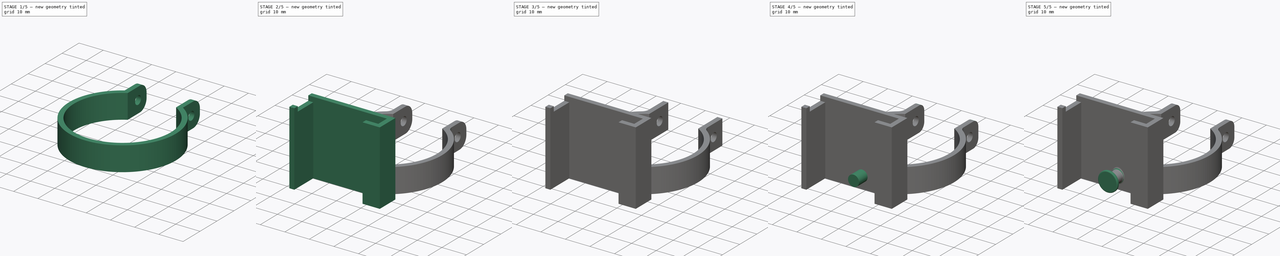
[diagram: build sequence overview — one tinted view per stage of 5, left to right]
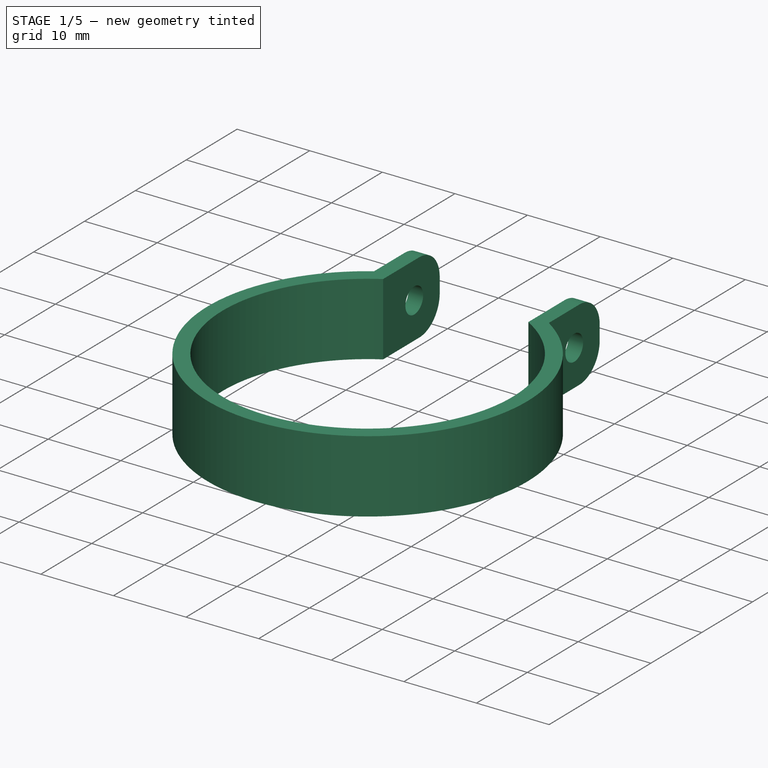
[diagram: stage 1 of 5 — iso view after this stage's code; geometry added in this stage tinted green]
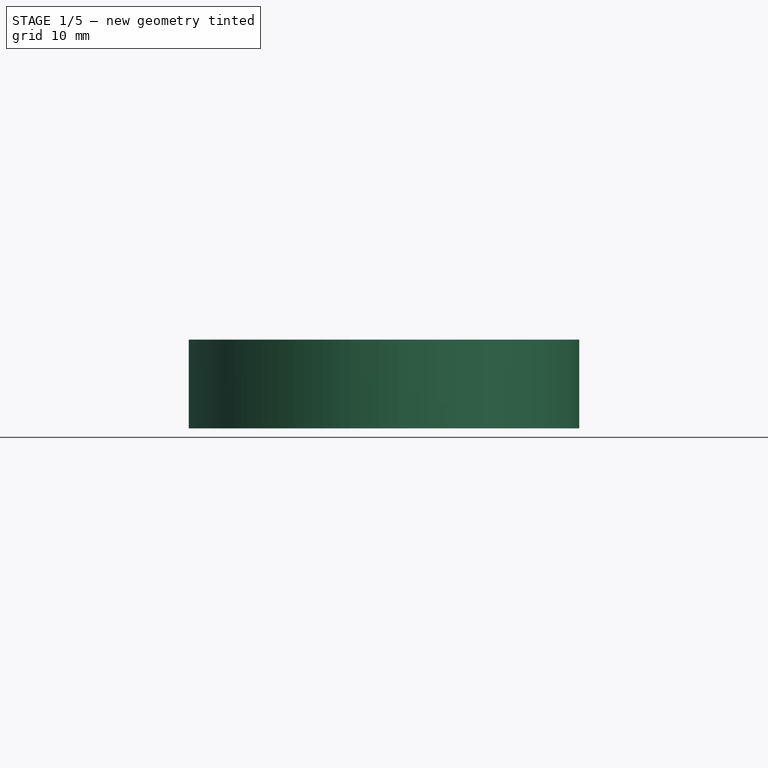
[diagram: stage 1 of 5 — front view after this stage's code; geometry added in this stage tinted green]
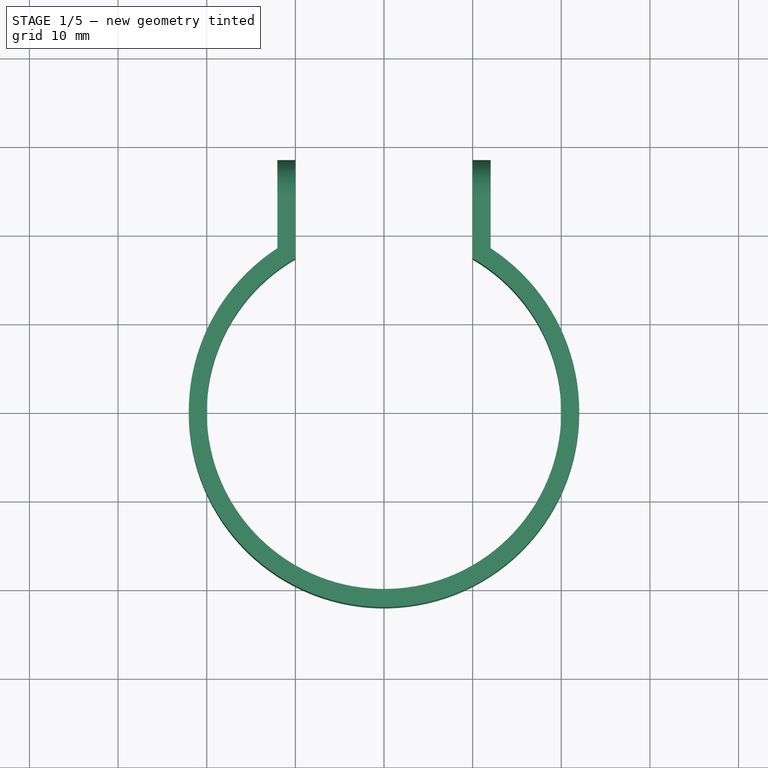
[diagram: stage 1 of 5 — top view after this stage's code; geometry added in this stage tinted green]
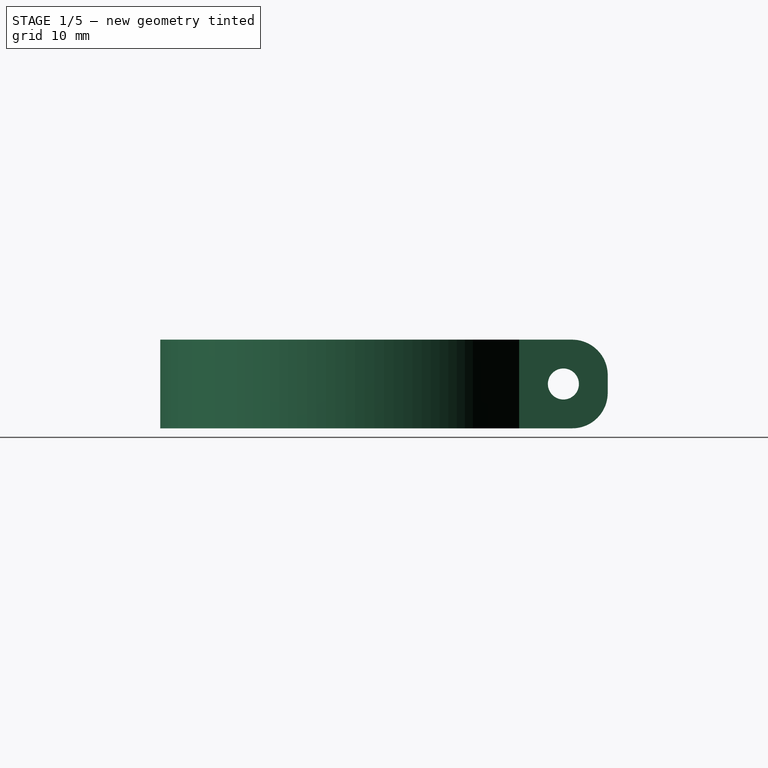
[diagram: stage 1 of 5 — right view after this stage's code; geometry added in this stage tinted green]
FCSTD DOCUMENT  (FreeCAD 0.17R13519 (Git))
Label: MMHook
License: All rights reserved
LicenseURL: http://en.wikipedia.org/wiki/All_rights_reserved
objects: Sketcher::SketchObject×8, PartDesign::Fillet×7, PartDesign::Pad×5, PartDesign::Pocket×3, PartDesign::Body×2, App::Part×2, Spreadsheet::Sheet×1
note: 33 computed .brp shape members not serialized (recipe doc carries the construction recipe); baked Part::Feature solids carry a one-line shape summary decoded from their .brp

FEATURE [PartDesign::Body] Body  label="MMHookBody"
  Group = -> [Sketch,Pad,Sketch001,Pocket,Fillet003,Fillet002,Sketch002,Pad001,Sketch003,Pad002,Fillet001,Fillet]
  Origin = -> Origin001
  Tip = -> Fillet
FEATURE [App::Part] Part  label="MMHook"
  Group = -> [Body]
  License = CC BY 3.0
  LicenseURL = http://creativecommons.org/licenses/by/3.0/
  Origin = -> Origin
FEATURE [Sketcher::SketchObject] Sketch004
  MapMode = 5
  Placement = pos=(0,0,0) rot=(0.57735,-0.57735,-0.57735;2.0944rad)
  expr: Constraints[2] = Spreadsheet.RingHeight / 2
  expr: Constraints[1] = Sketch005.Constraints.TabOffset + Spreadsheet.TabLength / 2
  sketch-geometry (1):
    g0: Circle CenterX=-23.4554 CenterY=5 CenterZ=0 NormalX=0 NormalY=0 NormalZ=1 AngleXU=0 Radius=1.75
  constraints (3):
    c: Radius(g0) = 1.75
    c: DistanceX(g0,g-1) = 23.4554
    c: DistanceY(g-1,g0) = 5
FEATURE [Sketcher::SketchObject] Sketch005  label="SqHookBase"
  MapMode = 5
  Support = -> [XY_Plane003]
  expr: Constraints[23] = Spreadsheet.TabLength
  expr: Constraints[14] = Spreadsheet.Thickness
  expr: Constraints[5] = Spreadsheet.Radius + Spreadsheet.Thickness
  expr: Constraints[3] = Spreadsheet.Radius
  expr: Constraints[1] = Spreadsheet.Radius
  sketch-geometry (10):
    g0: ArcOfCircle CenterX=0 CenterY=0 CenterZ=0 NormalX=0 NormalY=0 NormalZ=1 AngleXU=0 Radius=20 StartAngle=2.0944 EndAngle=7.33038
    g1: ArcOfCircle CenterX=0 CenterY=0 CenterZ=0 NormalX=0 NormalY=0 NormalZ=1 AngleXU=0 Radius=22.03 StartAngle=2.14847 EndAngle=7.27631
    g2: LineSegment StartX=-10 StartY=17.3205 StartZ=0 EndX=-10 EndY=28.4554 EndZ=0
    g3: LineSegment StartX=-10 StartY=28.4554 StartZ=0 EndX=-12.03 EndY=28.4554 EndZ=0
    g4: LineSegment StartX=-12.03 StartY=28.4554 StartZ=0 EndX=-12.03 EndY=18.4554 EndZ=0
    g5: LineSegment StartX=10 StartY=17.3205 StartZ=0 EndX=10 EndY=28.4554 EndZ=0
    g6: LineSegment StartX=10 StartY=28.4554 StartZ=0 EndX=12.03 EndY=28.4554 EndZ=0
    g7: LineSegment StartX=12.03 StartY=28.4554 StartZ=0 EndX=12.03 EndY=18.4554 EndZ=0
    g8: LineSegment [constr] StartX=-12.03 StartY=18.4554 StartZ=0 EndX=0 EndY=18.4554 EndZ=0
    g9: LineSegment [constr] StartX=0 StartY=18.4554 StartZ=0 EndX=0 EndY=0 EndZ=0
  constraints (31):
    c: Coincident(g0,g-1)
    c: Radius(g0) = 20
    c: Symmetric(g0,g0,g-2)
    c: DistanceX(g0,g0) = 20
    c: Coincident(g1,g-1)
    c: Radius(g1) = 22.03
    c: Symmetric(g1,g1,g-2)
    c: Coincident(g2,g0)
    c: Vertical(g2)
    c: Coincident(g3,g2)
    c: Horizontal(g3)
    c: Coincident(g4,g3)
    c: Coincident(g4,g1)
    c: Vertical(g4)
    c: DistanceX(g3,g3) = 2.03
    c: Coincident(g5,g0)
    c: Vertical(g5)
    c: Coincident(g6,g5)
    c: Horizontal(g6)
    c: Coincident(g7,g6)
    c: Coincident(g7,g1)
    c: Vertical(g7)
    c: Equal(g3,g6)
    c: DistanceY(g4,g4) = 10
    c: Equal(g4,g7)
    c: Coincident(g8,g1)
    c: PointOnObject(g8,g-2)
    c: Horizontal(g8)
    c: Coincident(g9,g8)
    c: Coincident(g9,g-1)
    c: DistanceY(g9,g9) = 18.4554  'TabOffset'
FEATURE [Sketcher::SketchObject] Sketch006
  MapMode = 5
  Support = -> [XY_Plane003]
  expr: Constraints[33] = 5mm + 2 * Spreadsheet.Thickness
  expr: Constraints[28] = Spreadsheet.Thickness
  expr: Constraints[34] = 11mm + Spreadsheet.Thickness
  expr: Constraints[29] = Spreadsheet.Radius + 0.001mm
  sketch-geometry (11):
    g0: LineSegment StartX=-17.03 StartY=-20.001 StartZ=0 EndX=17.03 EndY=-20.001 EndZ=0
    g1: LineSegment StartX=17.03 StartY=-20.001 StartZ=0 EndX=17.03 EndY=-29.061 EndZ=0
    g2: LineSegment StartX=17.03 StartY=-29.061 StartZ=0 EndX=10 EndY=-29.061 EndZ=0
    g3: LineSegment StartX=10 StartY=-29.061 StartZ=0 EndX=10 EndY=-27.031 EndZ=0
    g4: LineSegment StartX=10 StartY=-27.031 StartZ=0 EndX=15 EndY=-27.031 EndZ=0
    g5: LineSegment StartX=15 StartY=-27.031 StartZ=0 EndX=15 EndY=-22.031 EndZ=0
    g6: LineSegment StartX=15 StartY=-22.031 StartZ=0 EndX=-15 EndY=-22.031 EndZ=0
    g7: LineSegment StartX=-15 StartY=-22.031 StartZ=0 EndX=-15 EndY=-33.031 EndZ=0
    g8: LineSegment StartX=-15 StartY=-33.031 StartZ=0 EndX=-17.03 EndY=-33.031 EndZ=0
    g9: LineSegment StartX=-17.03 StartY=-33.031 StartZ=0 EndX=-17.03 EndY=-20.001 EndZ=0
    g10: LineSegment [constr] StartX=15 StartY=-27.031 StartZ=0 EndX=17.03 EndY=-27.031 EndZ=0
  constraints (35):
    c: Horizontal(g0)
    c: Coincident(g0,g1)
    c: Vertical(g1)
    c: Coincident(g1,g2)
    c: Horizontal(g2)
    c: Coincident(g2,g3)
    c: Coincident(g3,g4)
    c: Horizontal(g4)
    c: Coincident(g4,g5)
    c: Vertical(g5)
    c: Coincident(g5,g6)
    c: Horizontal(g6)
    c: Coincident(g6,g7)
    c: Vertical(g7)
    c: Coincident(g7,g8)
    c: Coincident(g8,g9)
    c: Coincident(g9,g0)
    c: Vertical(g9)
    c: Horizontal(g8)
    c: Equal(g8,g3)
    c: Symmetric(g0,g0,g-2)
    c: Symmetric(g5,g6,g-2)
    c: Vertical(g3)
    c: Coincident(g10,g4)
    c: PointOnObject(g10,g1)
    c: Horizontal(g10)
    c: Equal(g3,g10)
    c: DistanceX(g6,g6) = 30
    c: DistanceX(g8,g8) = 2.03
    c: DistanceY(g0,g-1) = 20.001
    c: DistanceY(g7,g7) = 11
    c: DistanceY(g3,g5) = 5
    c: DistanceX(g4,g4) = 5
    c: DistanceY(g1,g1) = 9.06
    c: DistanceY(g9,g9) = 13.03
FEATURE [PartDesign::Pad] Pad003
  Length = 10
  Length2 = 100
  Profile = -> Sketch005
  Type = 0
  expr: Length = Spreadsheet.RingHeight
FEATURE [PartDesign::Pocket] Pocket001
  BaseFeature = -> Pad003
  Length = 0
  Length2 = 100
  Midplane = true
  Profile = -> Sketch004
  Type = 1
FEATURE [PartDesign::Fillet] Fillet004
  Base = -> Pocket001 [Edge16,Edge20,Edge14,Edge10]
  BaseFeature = -> Pocket001
  Radius = 4
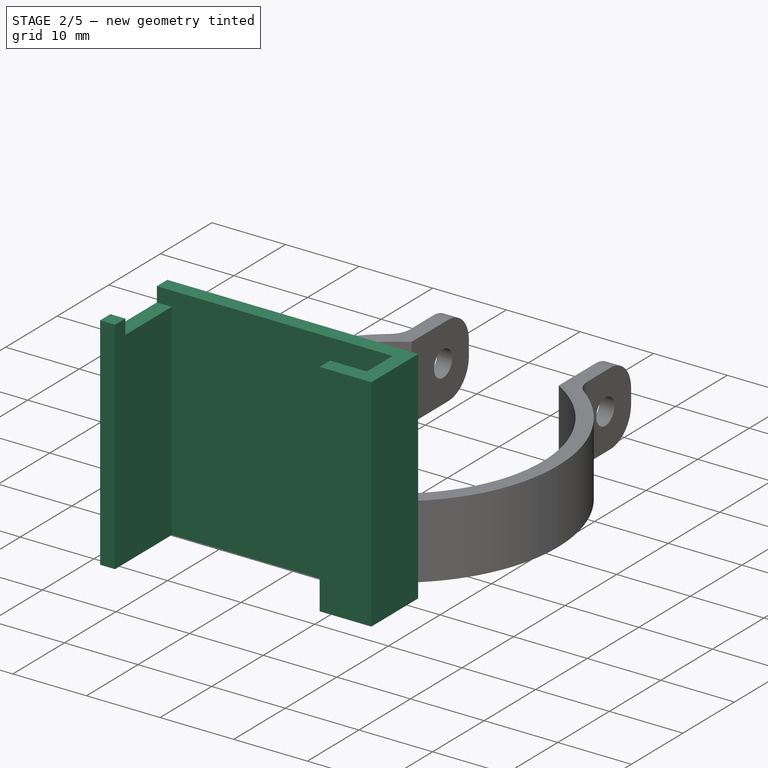
[diagram: stage 2 of 5 — iso view after this stage's code; geometry added in this stage tinted green]
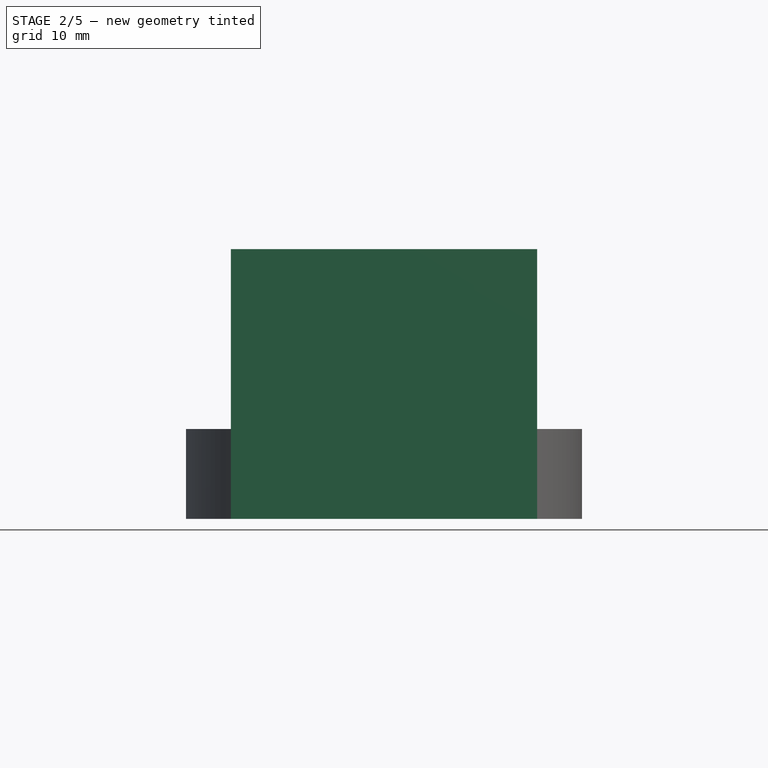
[diagram: stage 2 of 5 — front view after this stage's code; geometry added in this stage tinted green]
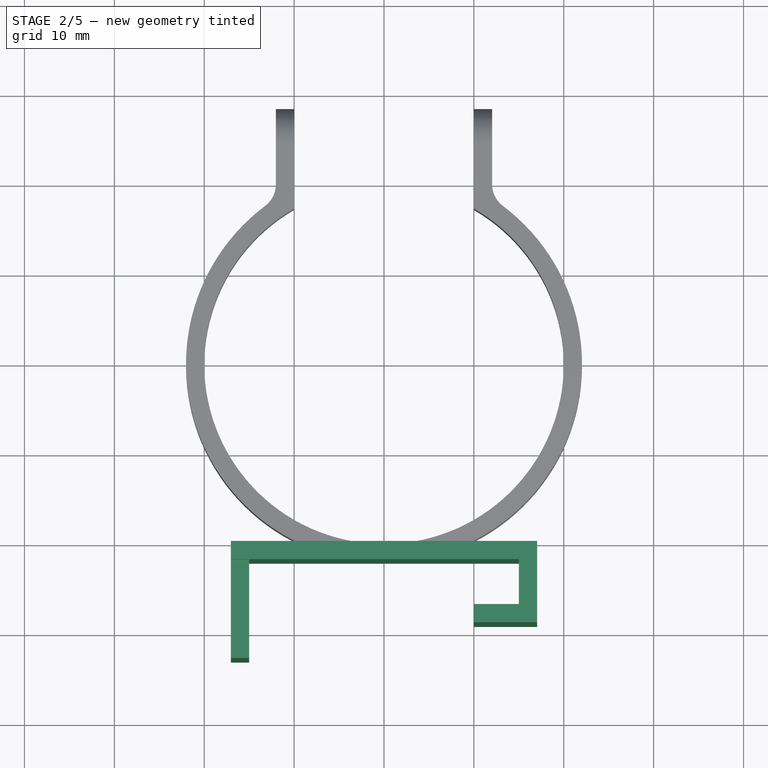
[diagram: stage 2 of 5 — top view after this stage's code; geometry added in this stage tinted green]
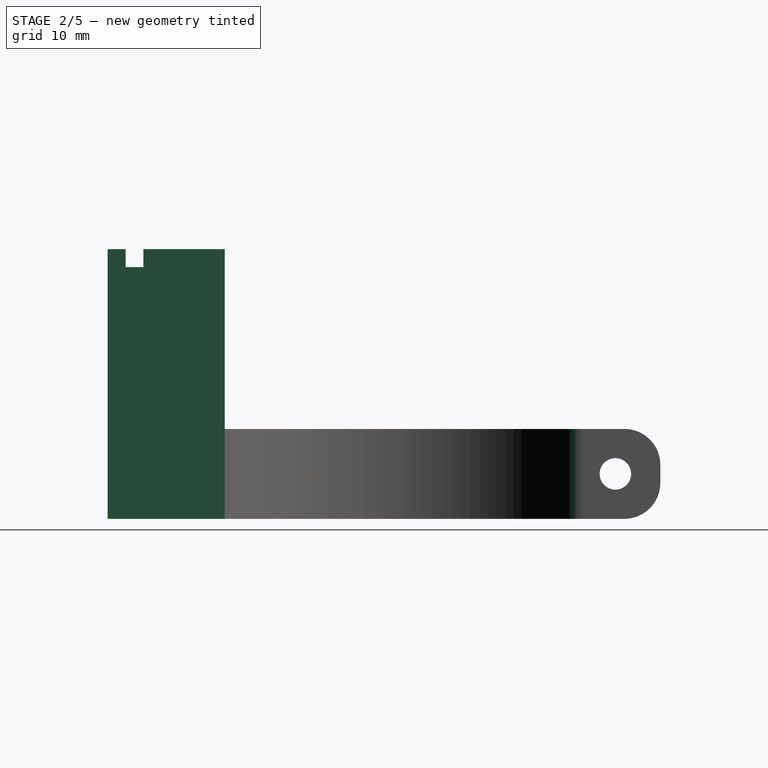
[diagram: stage 2 of 5 — right view after this stage's code; geometry added in this stage tinted green]
FEATURE [Spreadsheet::Sheet] Spreadsheet
  cells = B2=Radius; C2(Radius)==20mm; B3=Thickness; C3(Thickness)==2.0299999999999998mm; B4=TabLength; C4(TabLength)==10mm; B5=RingHeight; C5(RingHeight)==10mm
FEATURE [Sketcher::SketchObject] Sketch007
  AttachmentOffset = pos=(0,0,30) rot=(0,0,1;0rad)
  MapMode = 5
  Placement = pos=(0,0,30) rot=(0,0,1;0rad)
  Support = -> [XY_Plane003]
  expr: Constraints[12] = Spreadsheet.Radius + Spreadsheet.Thickness + 0.001mm
  expr: Constraints[5] = Spreadsheet.Thickness
  expr: AttachmentOffset.Base.z = Pad004.Length
  sketch-geometry (5):
    g0: LineSegment [constr] StartX=15 StartY=-22.031 StartZ=0 EndX=-15 EndY=-22.031 EndZ=0
    g1: LineSegment StartX=-15 StartY=-22.031 StartZ=0 EndX=-15 EndY=-31.031 EndZ=0
    g2: LineSegment StartX=-15 StartY=-31.031 StartZ=0 EndX=-17.03 EndY=-31.031 EndZ=0
    g3: LineSegment StartX=-17.03 StartY=-31.031 StartZ=0 EndX=-17.03 EndY=-22.031 EndZ=0
    g4: LineSegment StartX=-17.03 StartY=-22.031 StartZ=0 EndX=-15 EndY=-22.031 EndZ=0
  constraints (15):
    c: Coincident(g0,g1)
    c: Vertical(g1)
    c: Coincident(g1,g2)
    c: Horizontal(g2)
    c: DistanceX(g0,g0) = 30
    c: DistanceX(g2,g2) = 2.03
    c: DistanceY(g1,g1) = 9
    c: Coincident(g3,g2)
    c: Vertical(g3)
    c: Coincident(g4,g3)
    c: Coincident(g4,g0)
    c: Horizontal(g4)
    c: DistanceY(g3,g-1) = 22.031
    c: Horizontal(g0)
    c: Symmetric(g0,g0,g-2)
FEATURE [PartDesign::Fillet] Fillet006
  Base = -> Fillet004 [Edge30,Edge35]
  BaseFeature = -> Fillet004
  Radius = 3
FEATURE [PartDesign::Pad] Pad004
  BaseFeature = -> Fillet006
  Length = 30
  Length2 = 100
  Profile = -> Sketch006
  Type = 0
FEATURE [PartDesign::Pocket] Pocket002
  BaseFeature = -> Pad004
  Length = 2
  Length2 = 100
  Profile = -> Sketch007
  Type = 0
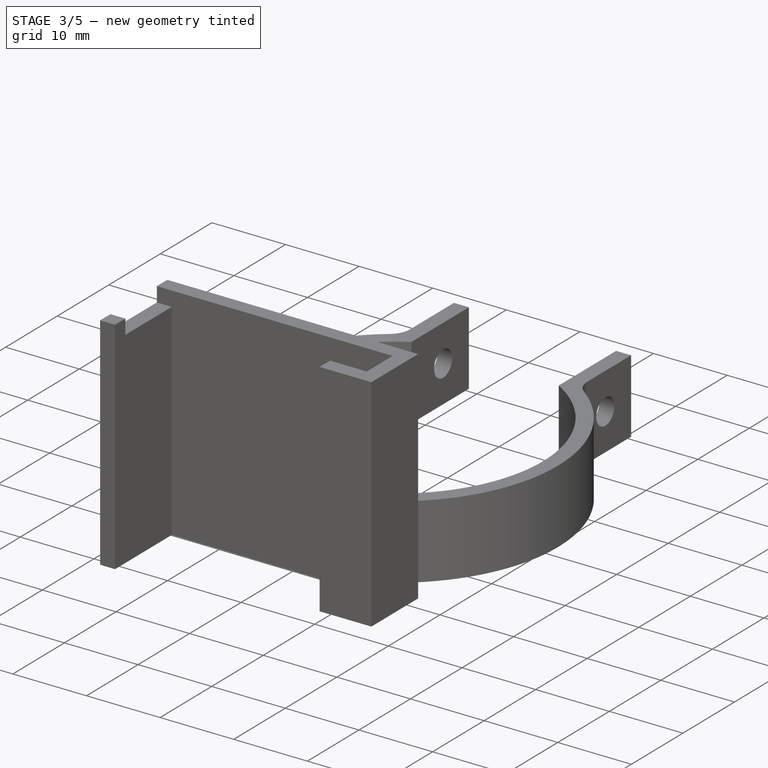
[diagram: stage 3 of 5 — iso view after this stage's code; geometry added in this stage tinted green]
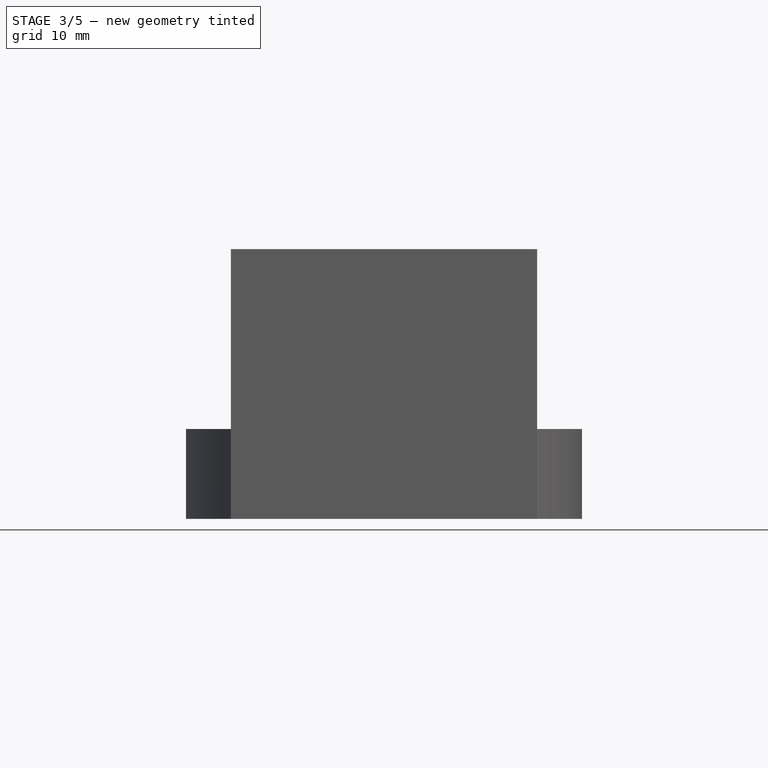
[diagram: stage 3 of 5 — front view after this stage's code; geometry added in this stage tinted green]
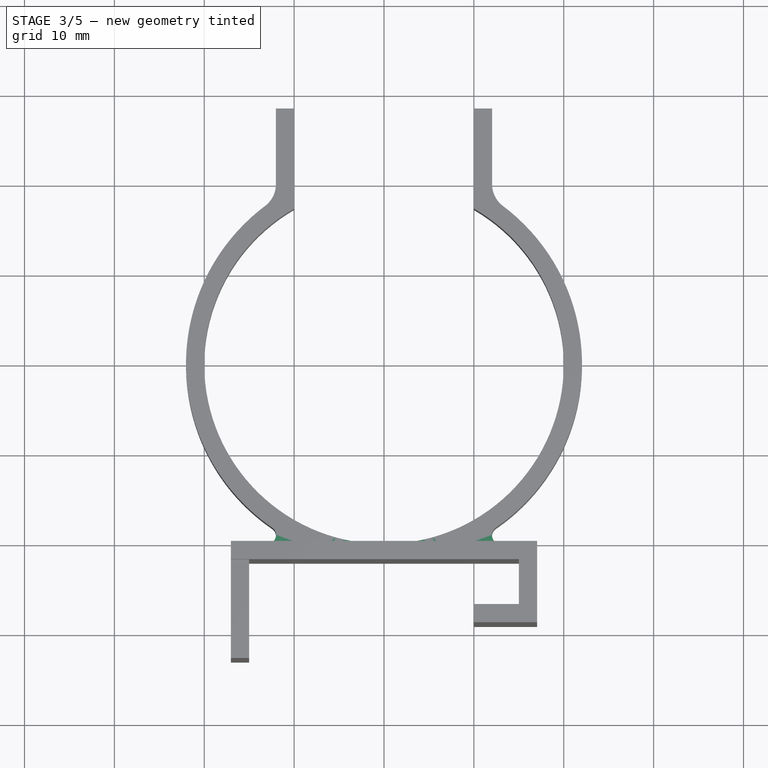
[diagram: stage 3 of 5 — top view after this stage's code; geometry added in this stage tinted green]
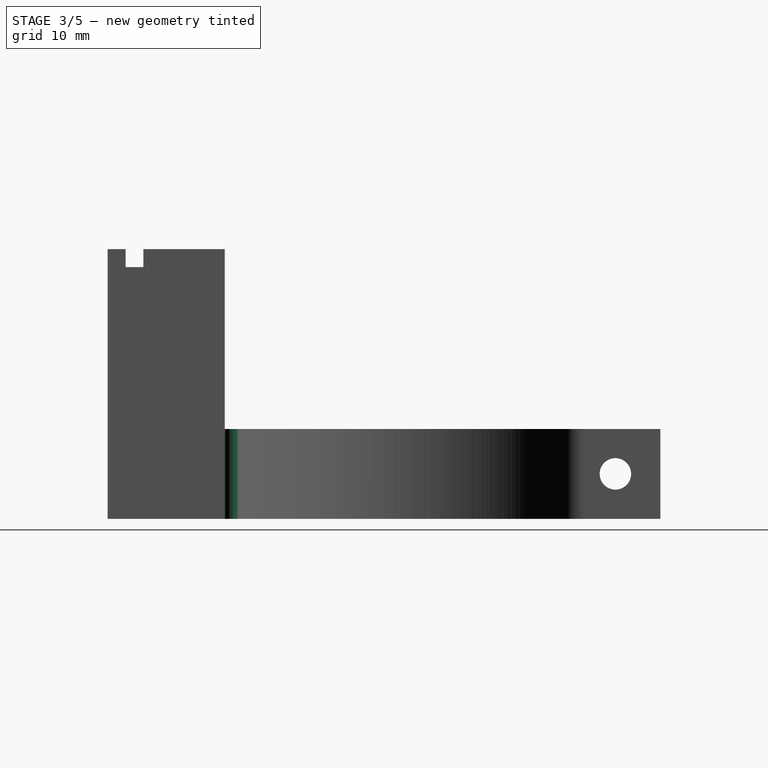
[diagram: stage 3 of 5 — right view after this stage's code; geometry added in this stage tinted green]
FEATURE [Sketcher::SketchObject] Sketch  label="MMHookBase"
  MapMode = 5
  Support = -> [XY_Plane001]
  expr: Constraints[3] = Spreadsheet.Radius
  expr: Constraints[1] = Spreadsheet.Radius
  expr: Constraints[5] = Spreadsheet.Radius + Spreadsheet.Thickness
  expr: Constraints[23] = Spreadsheet.TabLength
  expr: Constraints[14] = Spreadsheet.Thickness
  sketch-geometry (10):
    g0: ArcOfCircle CenterX=0 CenterY=0 CenterZ=0 NormalX=0 NormalY=0 NormalZ=1 AngleXU=0 Radius=20 StartAngle=2.0944 EndAngle=7.33038
    g1: ArcOfCircle CenterX=0 CenterY=0 CenterZ=0 NormalX=0 NormalY=0 NormalZ=1 AngleXU=0 Radius=22.03 StartAngle=2.14847 EndAngle=7.27631
    g2: LineSegment StartX=-10 StartY=17.3205 StartZ=0 EndX=-10 EndY=28.4554 EndZ=0
    g3: LineSegment StartX=-10 StartY=28.4554 StartZ=0 EndX=-12.03 EndY=28.4554 EndZ=0
    g4: LineSegment StartX=-12.03 StartY=28.4554 StartZ=0 EndX=-12.03 EndY=18.4554 EndZ=0
    g5: LineSegment StartX=10 StartY=17.3205 StartZ=0 EndX=10 EndY=28.4554 EndZ=0
    g6: LineSegment StartX=10 StartY=28.4554 StartZ=0 EndX=12.03 EndY=28.4554 EndZ=0
    g7: LineSegment StartX=12.03 StartY=28.4554 StartZ=0 EndX=12.03 EndY=18.4554 EndZ=0
    g8: LineSegment [constr] StartX=-12.03 StartY=18.4554 StartZ=0 EndX=0 EndY=18.4554 EndZ=0
    g9: LineSegment [constr] StartX=0 StartY=0 StartZ=0 EndX=0 EndY=18.4554 EndZ=0
  constraints (31):
    c: Coincident(g0,g-1)
    c: Radius(g0) = 20
    c: Symmetric(g0,g0,g-2)
    c: DistanceX(g0,g0) = 20
    c: Coincident(g1,g-1)
    c: Radius(g1) = 22.03
    c: Symmetric(g1,g1,g-2)
    c: Coincident(g2,g0)
    c: Vertical(g2)
    c: Coincident(g3,g2)
    c: Horizontal(g3)
    c: Coincident(g4,g3)
    c: Coincident(g4,g1)
    c: Vertical(g4)
    c: DistanceX(g3,g3) = 2.03
    c: Coincident(g5,g0)
    c: Vertical(g5)
    c: Coincident(g6,g5)
    c: Horizontal(g6)
    c: Coincident(g7,g6)
    c: Coincident(g7,g1)
    c: Vertical(g7)
    c: Equal(g3,g6)
    c: DistanceY(g4,g4) = 10
    c: Equal(g4,g7)
    c: Coincident(g8,g1)
    c: PointOnObject(g8,g-2)
    c: Horizontal(g8)
    c: Coincident(g9,g-1)
    c: Coincident(g9,g8)
    c: DistanceY(g9,g9) = 18.4554  'TabOffset'
FEATURE [PartDesign::Pad] Pad
  Length = 10
  Length2 = 100
  Profile = -> Sketch
  Type = 0
FEATURE [Sketcher::SketchObject] Sketch001
  MapMode = 5
  Placement = pos=(0,0,0) rot=(0.57735,0.57735,0.57735;2.0944rad)
  expr: Constraints[2] = Spreadsheet.RingHeight / 2
  expr: Constraints[1] = MMHookBase.Constraints.TabOffset + Spreadsheet.TabLength / 2
  sketch-geometry (1):
    g0: Circle CenterX=23.4554 CenterY=5 CenterZ=0 NormalX=0 NormalY=0 NormalZ=1 AngleXU=0 Radius=1.75
  constraints (3):
    c: Radius(g0) = 1.75
    c: DistanceX(g-1,g0) = 23.4554
    c: DistanceY(g-1,g0) = 5
FEATURE [PartDesign::Pocket] Pocket
  BaseFeature = -> Pad
  Length = 5
  Length2 = 100
  Midplane = true
  Profile = -> Sketch001
  Type = 1
FEATURE [PartDesign::Fillet] Fillet007
  Base = -> Pocket002 [Edge34,Edge21]
  BaseFeature = -> Pocket002
  Radius = 1
FEATURE [PartDesign::Body] Body001  label="SqHookBody"
  Group = -> [Sketch005,Pad003,Sketch004,Pocket001,Fillet004,Fillet006,Sketch006,Pad004,Sketch007,Pocket002,Fillet007]
  Origin = -> Origin003
  Tip = -> Fillet007
FEATURE [App::Part] Part001  label="SqHook"
  Group = -> [Body001]
  License = CC BY 3.0
  LicenseURL = http://creativecommons.org/licenses/by/3.0/
  Origin = -> Origin002
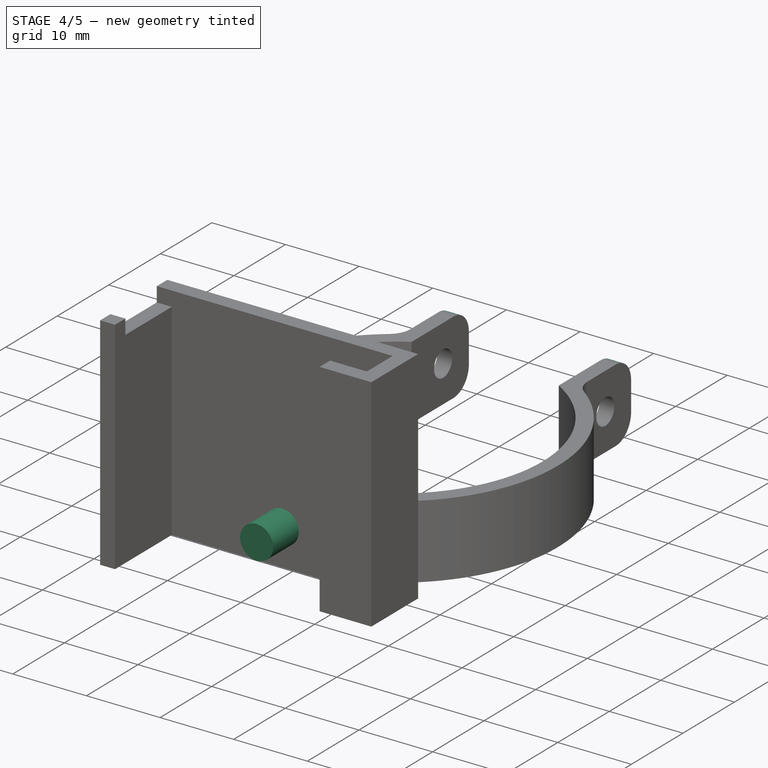
[diagram: stage 4 of 5 — iso view after this stage's code; geometry added in this stage tinted green]
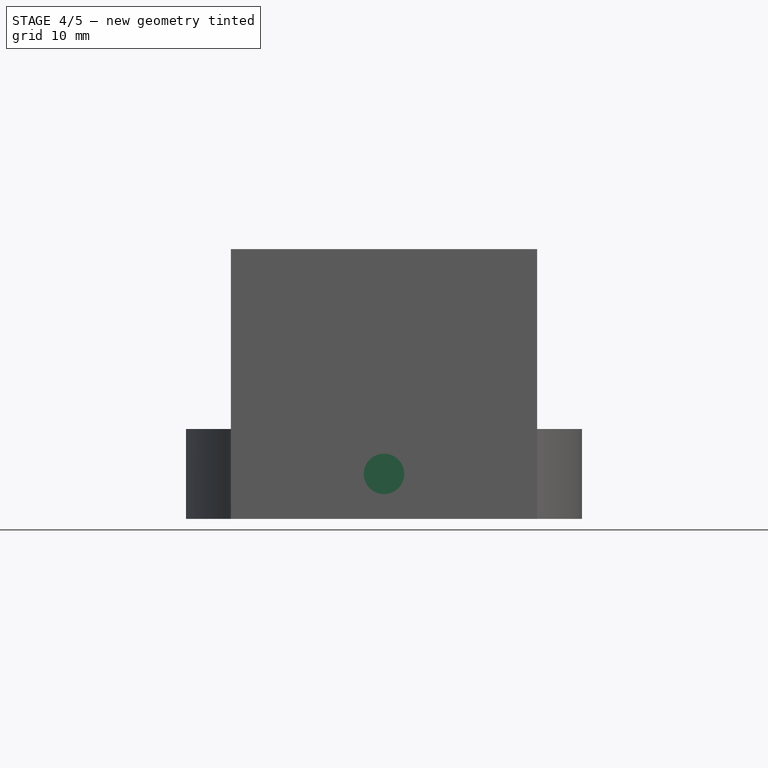
[diagram: stage 4 of 5 — front view after this stage's code; geometry added in this stage tinted green]
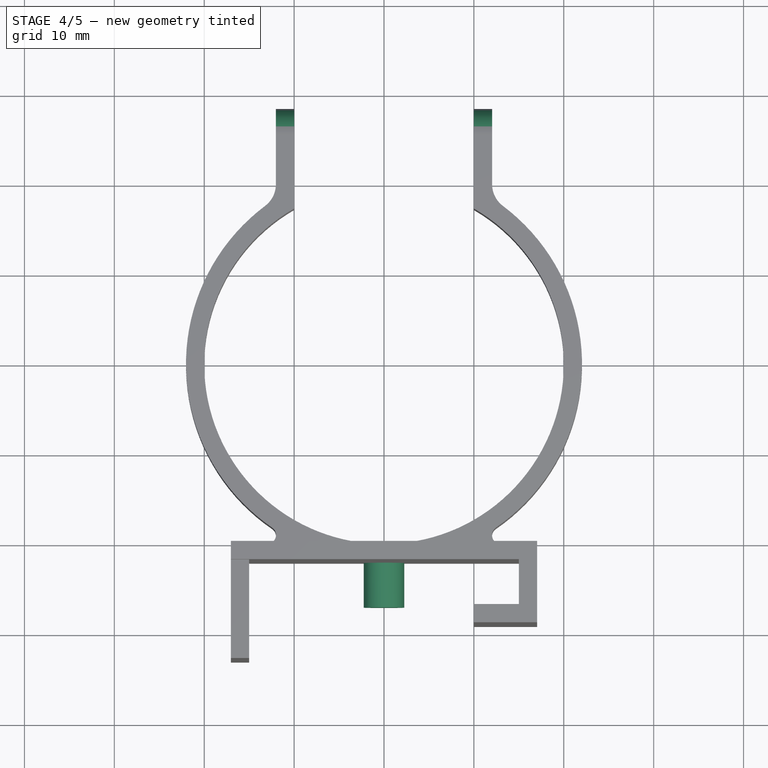
[diagram: stage 4 of 5 — top view after this stage's code; geometry added in this stage tinted green]
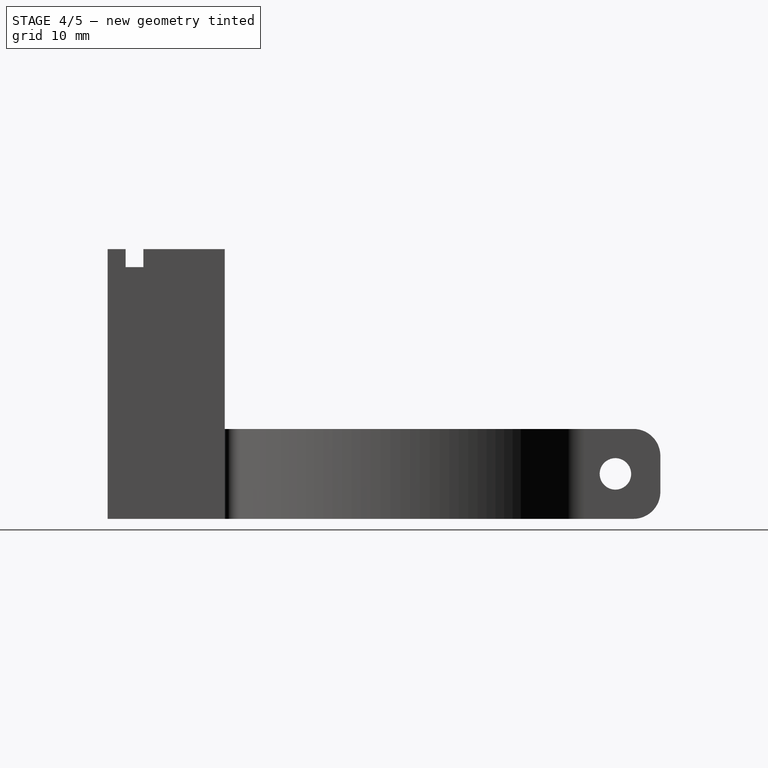
[diagram: stage 4 of 5 — right view after this stage's code; geometry added in this stage tinted green]
FEATURE [Sketcher::SketchObject] Sketch002
  AttachmentOffset = pos=(0,0,21) rot=(0,0,1;0rad)
  MapMode = 5
  Placement = pos=(0,-21,-2e-12) rot=(1,0,0;1.5708rad)
  Support = -> [XZ_Plane001]
  expr: AttachmentOffset.Base.z = Spreadsheet.Radius + 1mm
  sketch-geometry (1):
    g0: Circle CenterX=0 CenterY=5 CenterZ=0 NormalX=0 NormalY=0 NormalZ=1 AngleXU=0 Radius=2.25
  constraints (3):
    c: PointOnObject(g0,g-2)
    c: DistanceY(g-1,g0) = 5
    c: Radius(g0) = 2.25
FEATURE [PartDesign::Fillet] Fillet003
  Base = -> Pocket [Edge16,Edge20,Edge10,Edge14]
  BaseFeature = -> Pocket
  Radius = 3
FEATURE [PartDesign::Fillet] Fillet002
  Base = -> Fillet003 [Edge30,Edge35]
  BaseFeature = -> Fillet003
  Radius = 3
FEATURE [PartDesign::Pad] Pad001
  BaseFeature = -> Fillet002
  Length = 6
  Length2 = 100
  Profile = -> Sketch002
  Type = 0
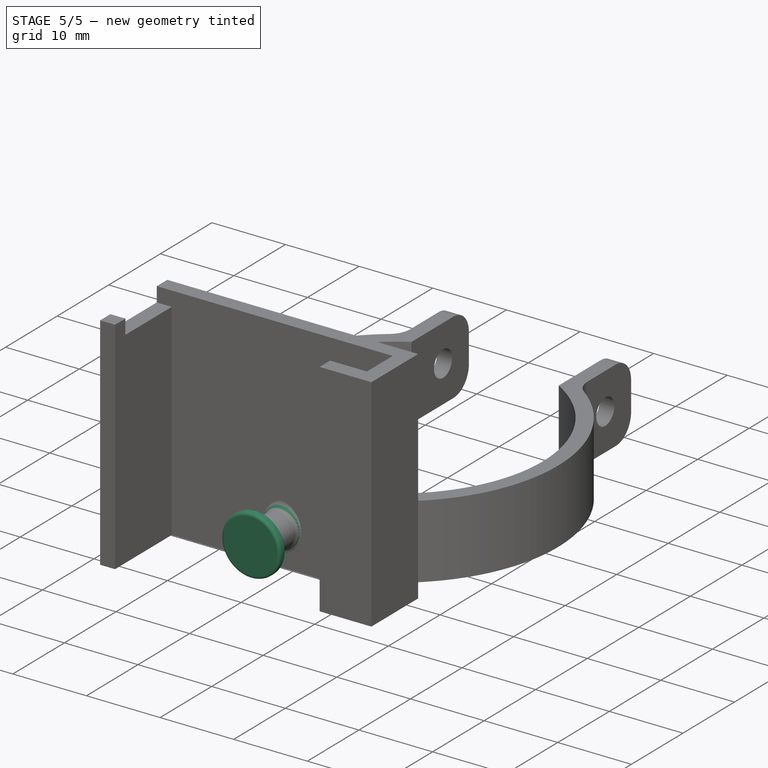
[diagram: stage 5 of 5 — iso view after this stage's code; geometry added in this stage tinted green]
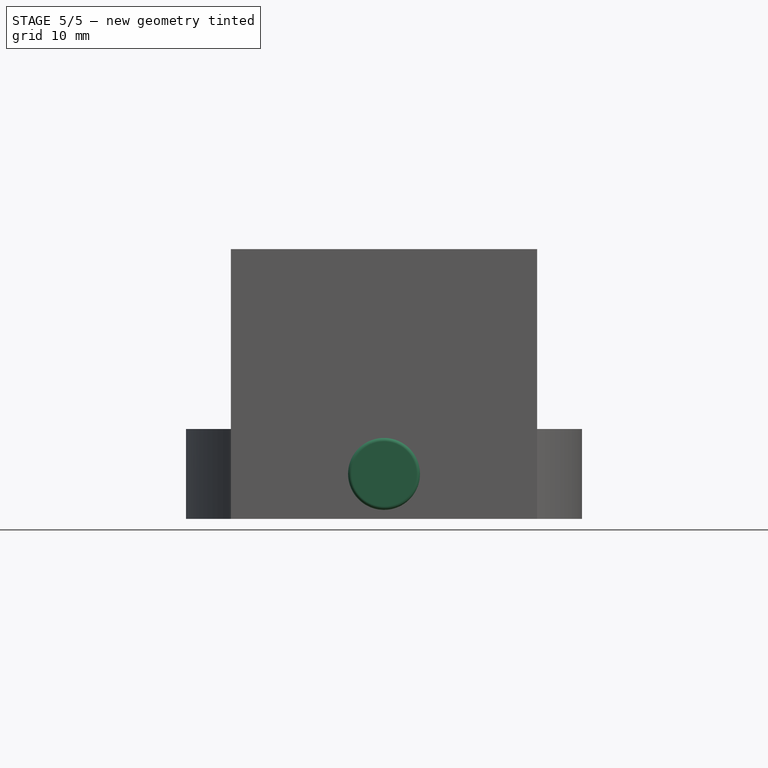
[diagram: stage 5 of 5 — front view after this stage's code; geometry added in this stage tinted green]
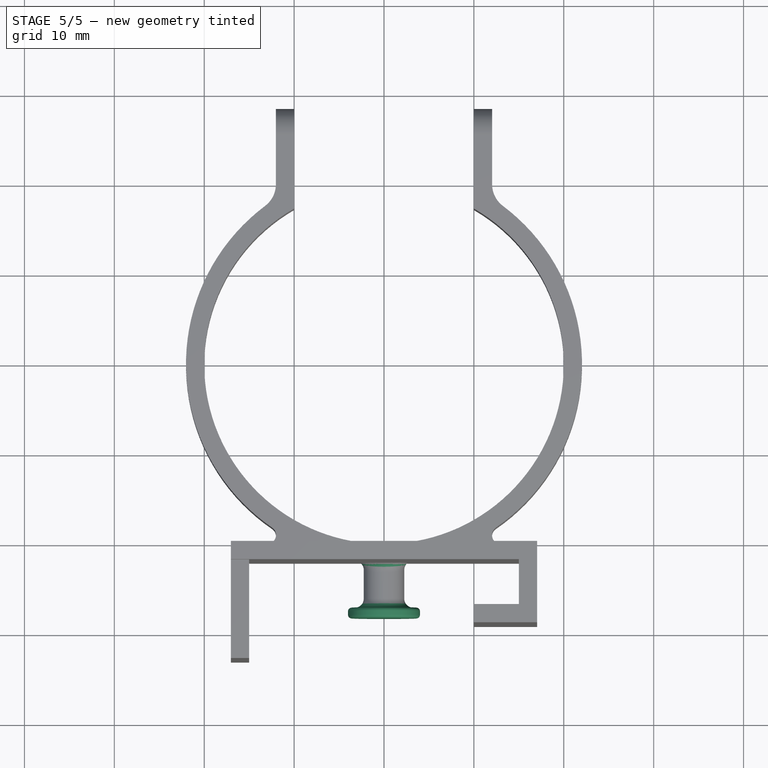
[diagram: stage 5 of 5 — top view after this stage's code; geometry added in this stage tinted green]
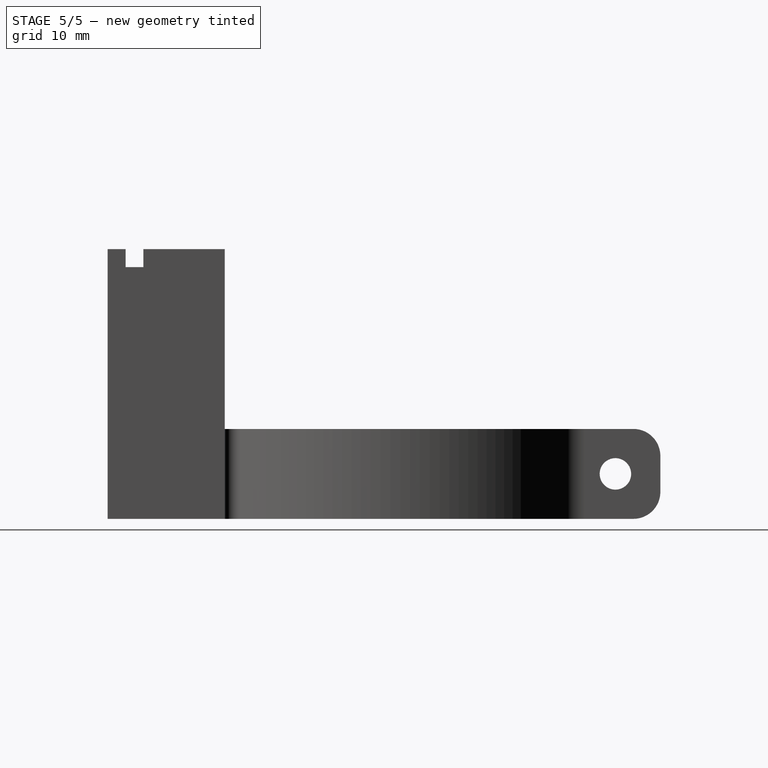
[diagram: stage 5 of 5 — right view after this stage's code; geometry added in this stage tinted green]
FEATURE [Sketcher::SketchObject] Sketch003
  MapMode = 5
  Placement = pos=(0,-27,-3e-12) rot=(1,0,0;1.5708rad)
  Support = -> [Pad001]
  sketch-geometry (1):
    g0: Circle CenterX=0 CenterY=5 CenterZ=0 NormalX=0 NormalY=0 NormalZ=1 AngleXU=0 Radius=4
  constraints (3):
    c: PointOnObject(g0,g-2)
    c: DistanceY(g-1,g0) = 5
    c: Radius(g0) = 4
FEATURE [PartDesign::Pad] Pad002
  BaseFeature = -> Pad001
  Length = 1.2
  Length2 = 100
  Profile = -> Sketch003
  Type = 0
FEATURE [PartDesign::Fillet] Fillet001
  Base = -> Pad002 [Edge23,Edge49]
  BaseFeature = -> Pad002
  Radius = 1
FEATURE [PartDesign::Fillet] Fillet
  Base = -> Fillet001 [Edge56,Edge58]
  BaseFeature = -> Fillet001
  Radius = 0.4
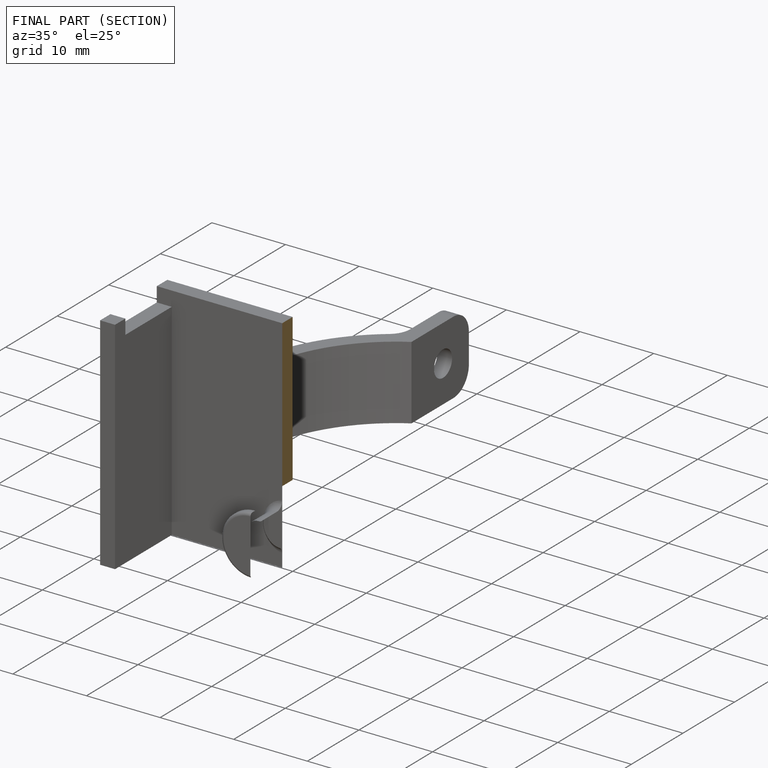
[diagram: finished part — half-section view (interior)]
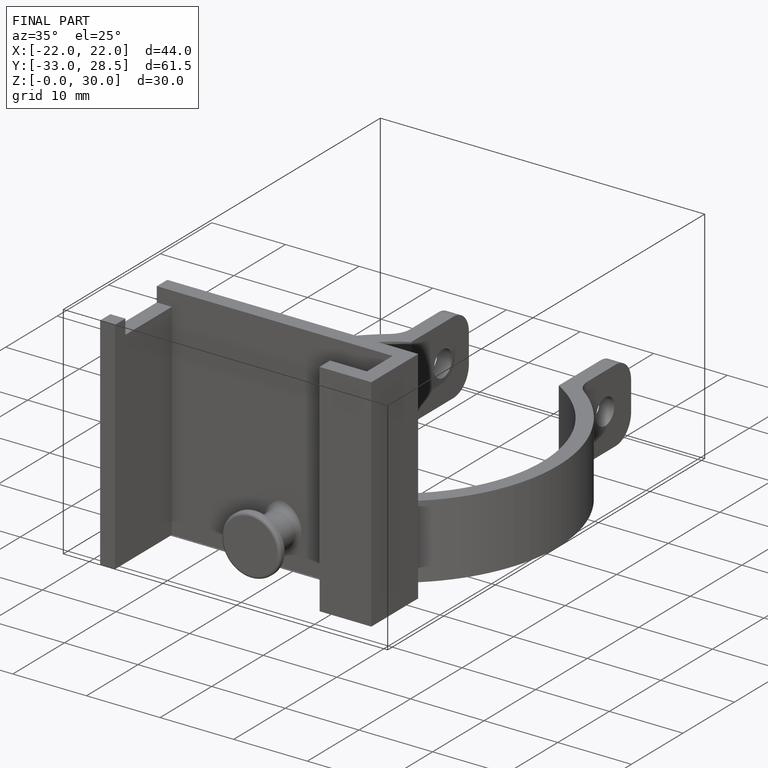
[diagram: finished part — iso view with bounding-box wireframe]
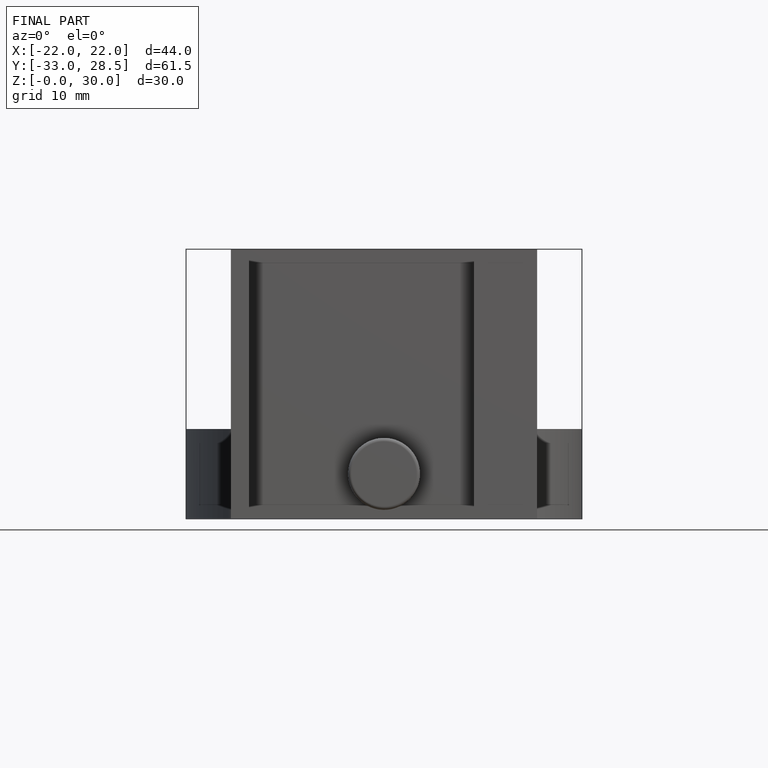
[diagram: finished part — front view with bounding-box wireframe]
